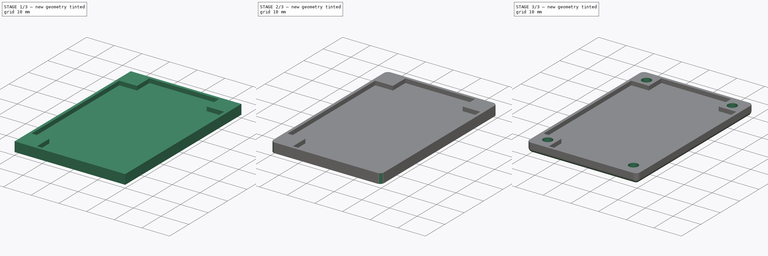
[diagram: build sequence overview — one tinted view per stage of 3, left to right]
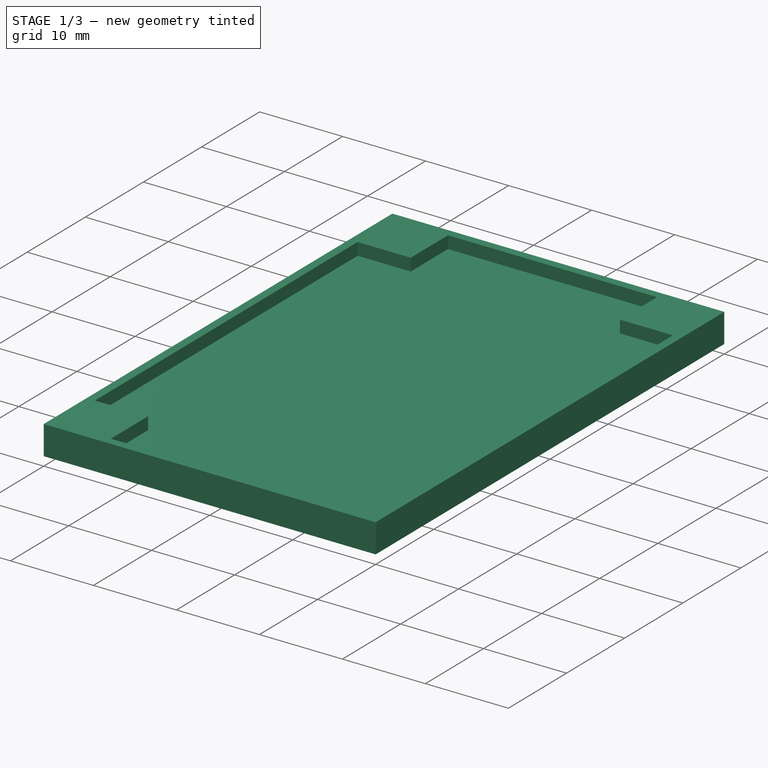
[diagram: stage 1 of 3 — iso view after this stage's code; geometry added in this stage tinted green]
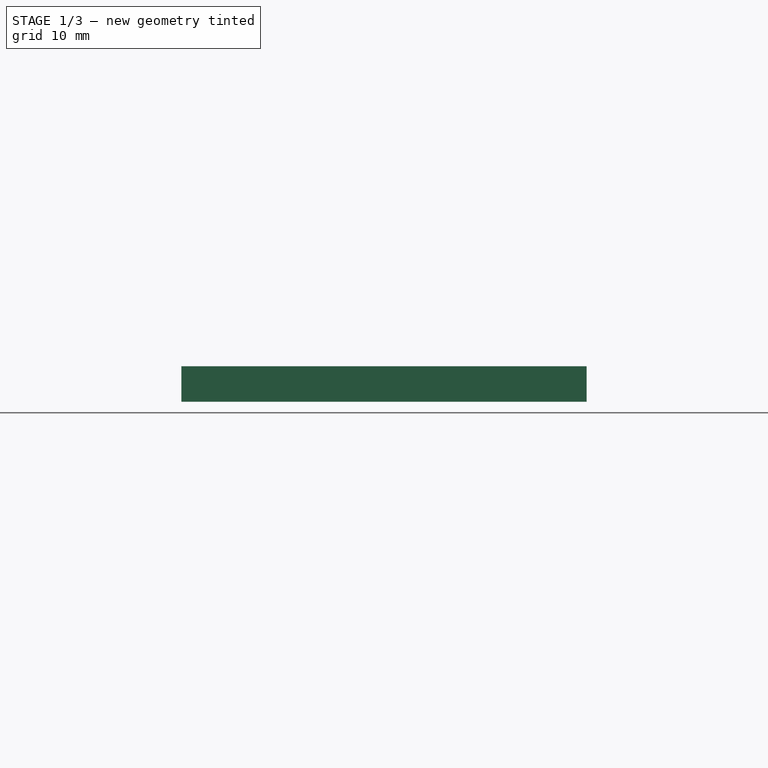
[diagram: stage 1 of 3 — front view after this stage's code; geometry added in this stage tinted green]
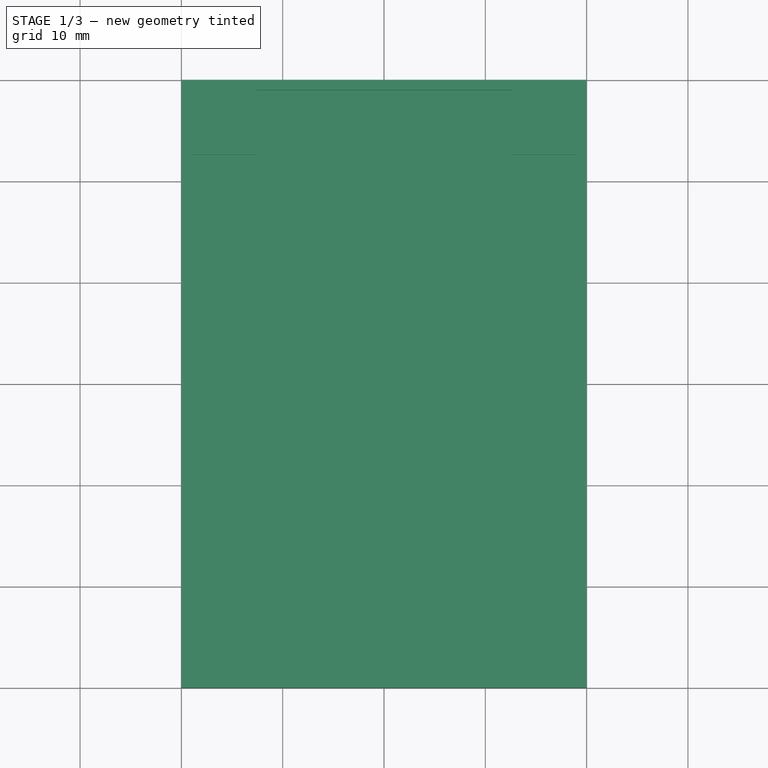
[diagram: stage 1 of 3 — top view after this stage's code; geometry added in this stage tinted green]
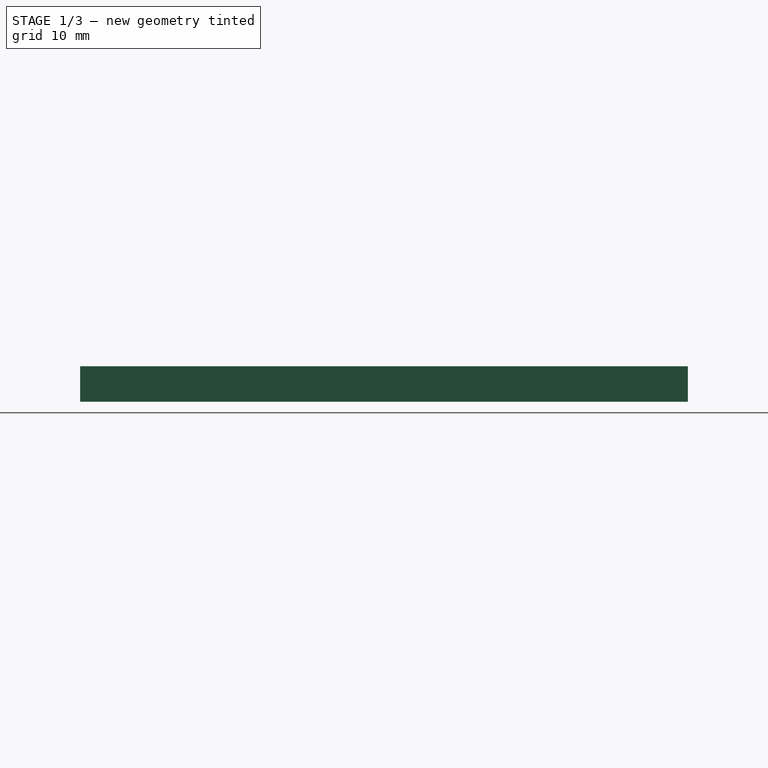
[diagram: stage 1 of 3 — right view after this stage's code; geometry added in this stage tinted green]
FCSTD DOCUMENT  (FreeCAD 0.18R16131 (Git))
Label: SmallVerticalAntennaCenterLid
License: All rights reserved
LicenseURL: http://en.wikipedia.org/wiki/All_rights_reserved
objects: Sketcher::SketchObject×5, PartDesign::Fillet×2, PartDesign::Pad×1, PartDesign::Pocket×1, PartDesign::Hole×1, PartDesign::Body×1
note: 14 computed .brp shape members not serialized (recipe doc carries the construction recipe); baked Part::Feature solids carry a one-line shape summary decoded from their .brp

FEATURE [Sketcher::SketchObject] Sketch003
  MapMode = 5
  Support = -> [XY_Plane]
  sketch-geometry (4):
    g0: LineSegment StartX=-20 StartY=30 StartZ=0 EndX=20 EndY=30 EndZ=0
    g1: LineSegment StartX=20 StartY=30 StartZ=0 EndX=20 EndY=-30 EndZ=0
    g2: LineSegment StartX=20 StartY=-30 StartZ=0 EndX=-20 EndY=-30 EndZ=0
    g3: LineSegment StartX=-20 StartY=-30 StartZ=0 EndX=-20 EndY=30 EndZ=0
  constraints (10):
    c: Coincident(g0,g1)
    c: Coincident(g1,g2)
    c: Coincident(g2,g3)
    c: Coincident(g3,g0)
    c: Horizontal(g2)
    c: Vertical(g1)
    c: Symmetric(g0,g0,g-2)
    c: Symmetric(g0,g2,g-1)
    c: DistanceX(g-2,g0) = -20
    c: DistanceY(g-1,g2) = -30
FEATURE [Sketcher::SketchObject] CopySketch003
  sketch-geometry (4):
    g0: LineSegment StartX=-20 StartY=30 StartZ=0 EndX=20 EndY=30 EndZ=0
    g1: LineSegment StartX=20 StartY=30 StartZ=0 EndX=20 EndY=-30 EndZ=0
    g2: LineSegment StartX=20 StartY=-30 StartZ=0 EndX=-20 EndY=-30 EndZ=0
    g3: LineSegment StartX=-20 StartY=-30 StartZ=0 EndX=-20 EndY=30 EndZ=0
  constraints (10):
    c: Coincident(g0,g1)
    c: Coincident(g1,g2)
    c: Coincident(g2,g3)
    c: Coincident(g3,g0)
    c: Horizontal(g2)
    c: Vertical(g1)
    c: Symmetric(g0,g0,g-2)
    c: Symmetric(g0,g2,g-1)
    c: DistanceX(g-2,g0) = -20
    c: DistanceY(g-1,g2) = -30
FEATURE [PartDesign::Pad] Pad
  Length = 3.5
  Length2 = 100
  Profile = -> CopySketch003
  Type = 0
FEATURE [Sketcher::SketchObject] Sketch002
  ExternalGeometry = -> [Pad]
  MapMode = 5
  Placement = pos=(0,0,3.5) rot=(0,0,1;0rad)
  Support = -> [Pad]
  sketch-geometry (13):
    g0: LineSegment StartX=-13.5 StartY=29 StartZ=0 EndX=13.5 EndY=29 EndZ=0
    g1: LineSegment StartX=19 StartY=23.5 StartZ=0 EndX=19 EndY=-23.5 EndZ=0
    g2: LineSegment StartX=13.5 StartY=-29 StartZ=0 EndX=-13.5 EndY=-29 EndZ=0
    g3: LineSegment StartX=-19 StartY=-23.5 StartZ=0 EndX=-19 EndY=23.5 EndZ=0
    g4: Circle [constr] CenterX=16.5 CenterY=26.5 CenterZ=0 NormalX=0 NormalY=0 NormalZ=1 AngleXU=0 Radius=1.8
    g5: LineSegment StartX=13.5 StartY=29 StartZ=0 EndX=13.5 EndY=23.5 EndZ=0
    g6: LineSegment StartX=13.5 StartY=23.5 StartZ=0 EndX=19 EndY=23.5 EndZ=0
    g7: LineSegment StartX=19 StartY=-23.5 StartZ=0 EndX=13.5 EndY=-23.5 EndZ=0
    g8: LineSegment StartX=13.5 StartY=-23.5 StartZ=0 EndX=13.5 EndY=-29 EndZ=0
    g9: LineSegment StartX=-13.5 StartY=-29 StartZ=0 EndX=-13.5 EndY=-23.5 EndZ=0
    g10: LineSegment StartX=-13.5 StartY=-23.5 StartZ=0 EndX=-19 EndY=-23.5 EndZ=0
    g11: LineSegment StartX=-19 StartY=23.5 StartZ=0 EndX=-13.5 EndY=23.5 EndZ=0
    g12: LineSegment StartX=-13.5 StartY=23.5 StartZ=0 EndX=-13.5 EndY=29 EndZ=0
  constraints (33):
    c: Diameter(g4) = 3.6
    c: Distance(g4,g-3) = 3.5
    c: Distance(g4,g-4) = 3.5
    c: Symmetric(g0,g2,g-1)
    c: Symmetric(g3,g1,g-2)
    c: Distance(g0,g-3) = 1
    c: Distance(g3,g-6) = 1
    c: Symmetric(g3,g1,g-2)
    c: Symmetric(g0,g2,g-1)
    c: Symmetric(g0,g0,g-2)
    c: Symmetric(g3,g3,g-1)
    c: Coincident(g0,g5)
    c: Coincident(g5,g6)
    c: Coincident(g6,g1)
    c: Coincident(g1,g7)
    c: Horizontal(g7)
    c: Coincident(g7,g8)
    c: Coincident(g8,g2)
    c: Coincident(g2,g9)
    c: Vertical(g9)
    c: Coincident(g9,g10)
    c: Coincident(g10,g3)
    c: Coincident(g3,g11)
    c: Coincident(g11,g12)
    c: Coincident(g12,g0)
    c: Horizontal(g10)
    c: Horizontal(g6)
    c: Vertical(g5)
    c: Vertical(g12)
    c: Horizontal(g11)
    c: Equal(g10,g9)
    c: Equal(g8,g7)
    c: Distance(g9,g-6) = 6.5
FEATURE [Sketcher::SketchObject] CopySketch002
  ExternalGeometry = -> [Sketch003]
  Placement = pos=(0,0,3.5) rot=(0,0,1;0rad)
  sketch-geometry (13):
    g0: LineSegment StartX=-12.6 StartY=29 StartZ=0 EndX=12.6 EndY=29 EndZ=0
    g1: LineSegment StartX=19 StartY=22.6 StartZ=0 EndX=19 EndY=-22.6 EndZ=0
    g2: LineSegment StartX=12.6 StartY=-29 StartZ=0 EndX=-12.6 EndY=-29 EndZ=0
    g3: LineSegment StartX=-19 StartY=-22.6 StartZ=0 EndX=-19 EndY=22.6 EndZ=0
    g4: Circle [constr] CenterX=15.5 CenterY=25.5 CenterZ=0 NormalX=0 NormalY=0 NormalZ=1 AngleXU=0 Radius=1.8
    g5: LineSegment StartX=12.6 StartY=29 StartZ=0 EndX=12.6 EndY=22.6 EndZ=0
    g6: LineSegment StartX=12.6 StartY=22.6 StartZ=0 EndX=19 EndY=22.6 EndZ=0
    g7: LineSegment StartX=19 StartY=-22.6 StartZ=0 EndX=12.6 EndY=-22.6 EndZ=0
    g8: LineSegment StartX=12.6 StartY=-22.6 StartZ=0 EndX=12.6 EndY=-29 EndZ=0
    g9: LineSegment StartX=-12.6 StartY=-29 StartZ=0 EndX=-12.6 EndY=-22.6 EndZ=0
    g10: LineSegment StartX=-12.6 StartY=-22.6 StartZ=0 EndX=-19 EndY=-22.6 EndZ=0
    g11: LineSegment StartX=-19 StartY=22.6 StartZ=0 EndX=-12.6 EndY=22.6 EndZ=0
    g12: LineSegment StartX=-12.6 StartY=22.6 StartZ=0 EndX=-12.6 EndY=29 EndZ=0
  constraints (33):
    c: Diameter(g4) = 3.6
    c: Symmetric(g0,g2,g-1)
    c: Symmetric(g3,g1,g-2)
    c: Symmetric(g3,g1,g-2)
    c: Symmetric(g0,g2,g-1)
    c: Symmetric(g0,g0,g-2)
    c: Symmetric(g3,g3,g-1)
    c: Coincident(g0,g5)
    c: Coincident(g5,g6)
    c: Coincident(g6,g1)
    c: Coincident(g1,g7)
    c: Horizontal(g7)
    c: Coincident(g7,g8)
    c: Coincident(g8,g2)
    c: Coincident(g2,g9)
    c: Vertical(g9)
    c: Coincident(g9,g10)
    c: Coincident(g10,g3)
    c: Coincident(g3,g11)
    c: Coincident(g11,g12)
    c: Coincident(g12,g0)
    c: Horizontal(g10)
    c: Horizontal(g6)
    c: Vertical(g5)
    c: Vertical(g12)
    c: Horizontal(g11)
    c: Equal(g10,g9)
    c: Equal(g8,g7)
    c: Distance(g3,g-4) = 1
    c: Distance(g2,g-6) = 1
    c: Distance(g4,g-3) = 4.5
    c: Distance(g4,g-5) = 4.5
    c: Distance(g9,g-4) = 7.4
FEATURE [PartDesign::Pocket] Pocket
  BaseFeature = -> Pad
  Length = 1.5
  Length2 = 100
  Profile = -> CopySketch002
  Type = 0
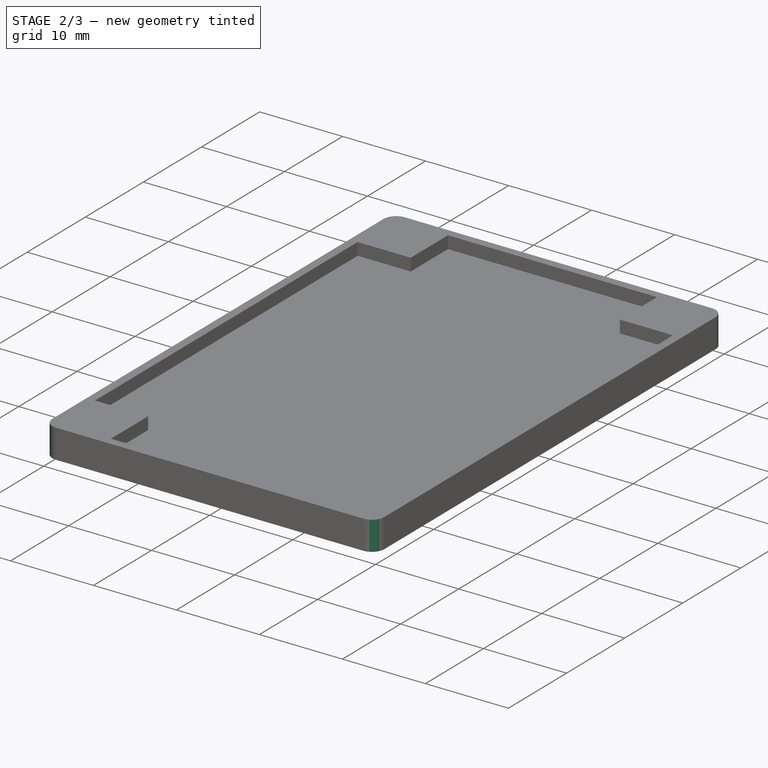
[diagram: stage 2 of 3 — iso view after this stage's code; geometry added in this stage tinted green]
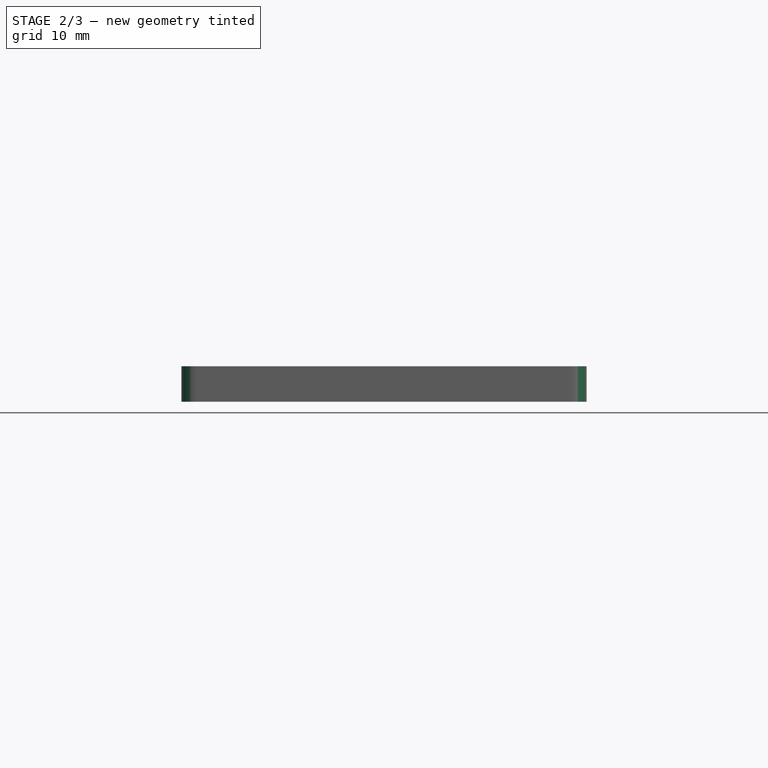
[diagram: stage 2 of 3 — front view after this stage's code; geometry added in this stage tinted green]
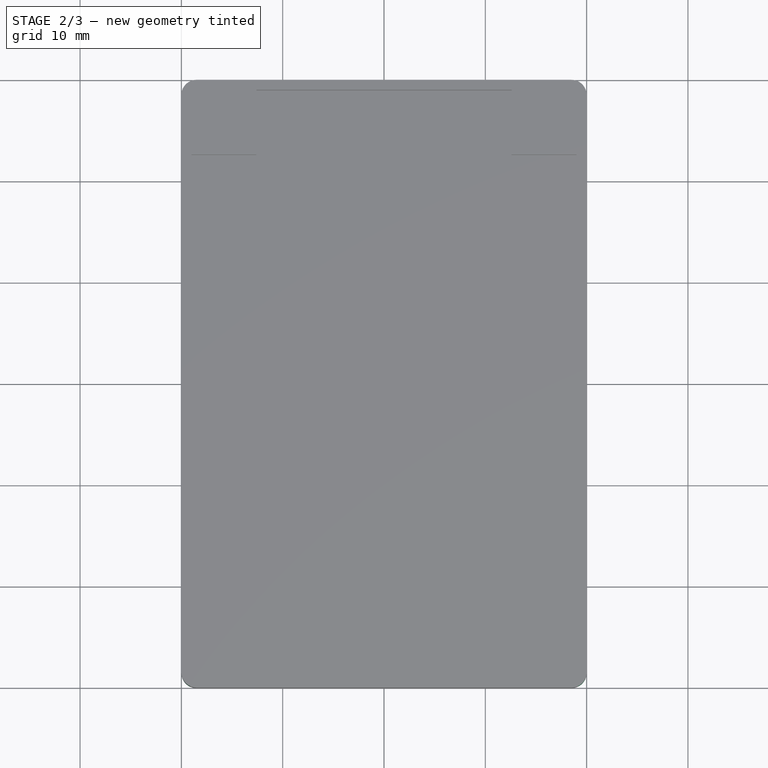
[diagram: stage 2 of 3 — top view after this stage's code; geometry added in this stage tinted green]
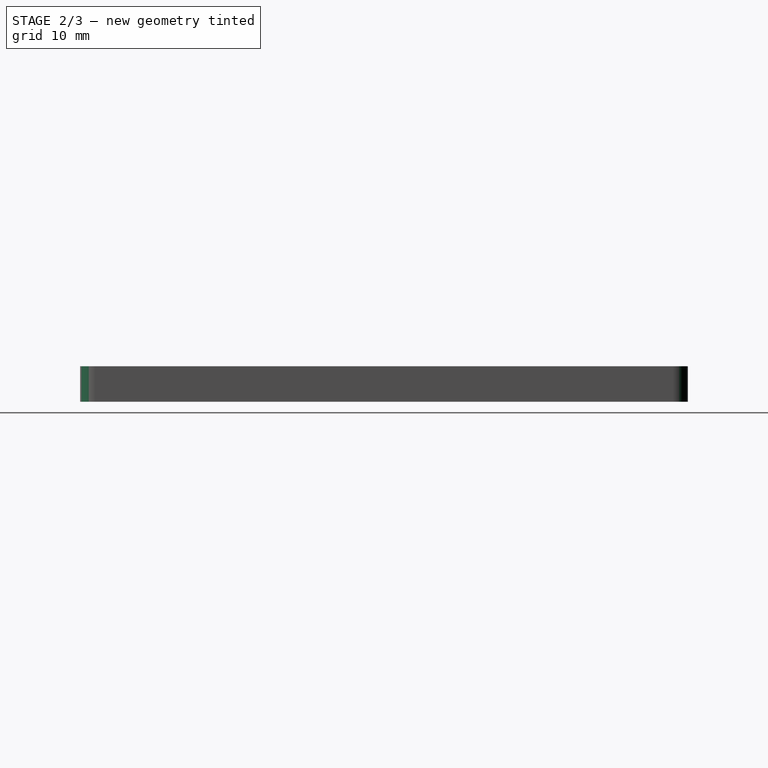
[diagram: stage 2 of 3 — right view after this stage's code; geometry added in this stage tinted green]
FEATURE [PartDesign::Fillet] Fillet
  Base = -> Pocket [Edge8,Edge5,Edge2,Edge1]
  BaseFeature = -> Pocket
  Radius = 1.5
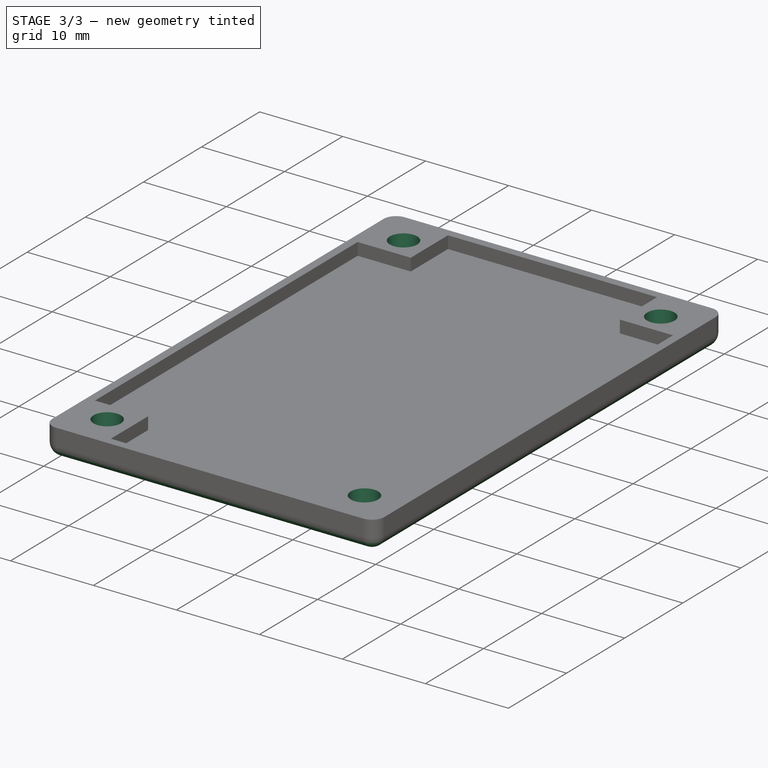
[diagram: stage 3 of 3 — iso view after this stage's code; geometry added in this stage tinted green]
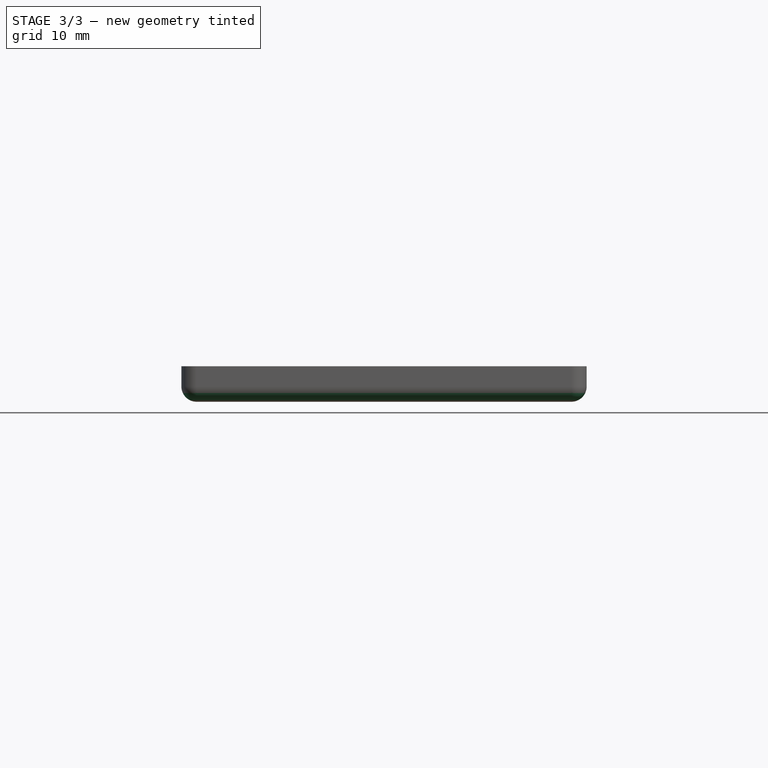
[diagram: stage 3 of 3 — front view after this stage's code; geometry added in this stage tinted green]
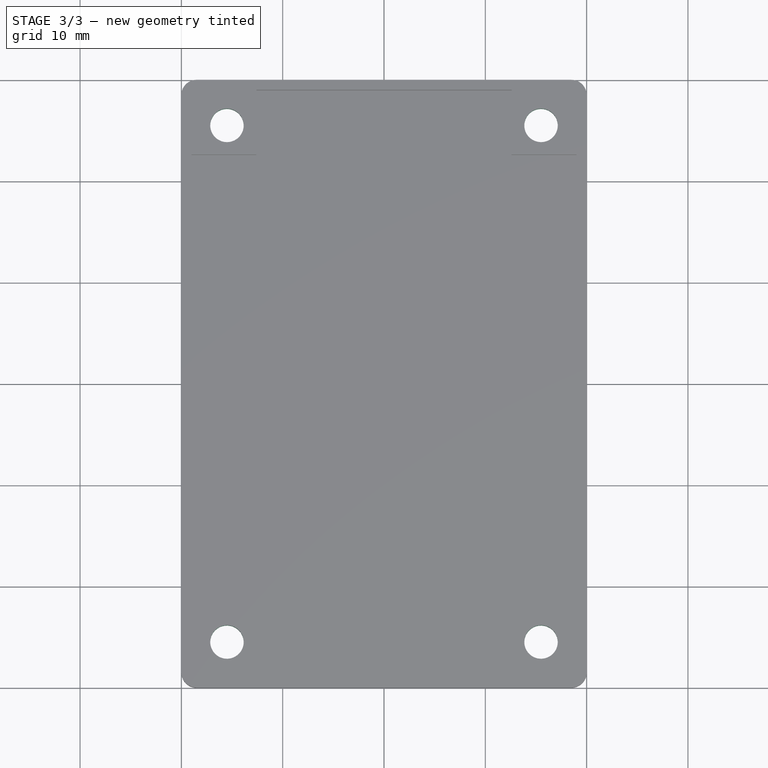
[diagram: stage 3 of 3 — top view after this stage's code; geometry added in this stage tinted green]
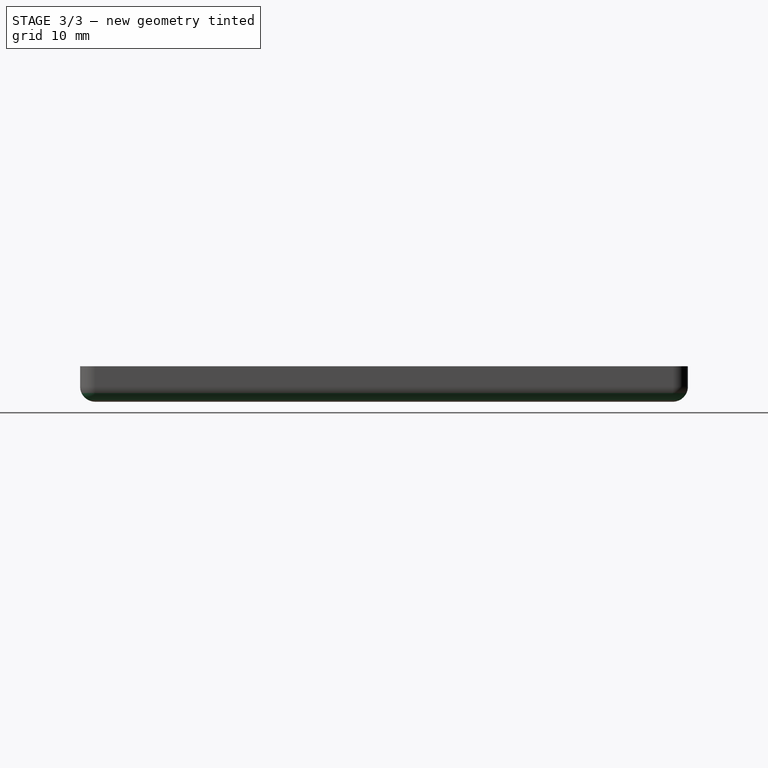
[diagram: stage 3 of 3 — right view after this stage's code; geometry added in this stage tinted green]
FEATURE [PartDesign::Fillet] Fillet001
  Base = -> Fillet [Face2]
  BaseFeature = -> Fillet
  Radius = 1.5
FEATURE [Sketcher::SketchObject] Sketch
  MapMode = 5
  Placement = pos=(0,0,0) rot=(1,0,0;3.14159rad)
  Support = -> [Fillet001]
  sketch-geometry (4):
    g0: Circle CenterX=15.5 CenterY=25.5 CenterZ=0 NormalX=0 NormalY=0 NormalZ=1 AngleXU=0 Radius=1.6
    g1: Circle CenterX=15.5 CenterY=-25.5 CenterZ=0 NormalX=0 NormalY=0 NormalZ=1 AngleXU=0 Radius=1.6
    g2: Circle CenterX=-15.5 CenterY=-25.5 CenterZ=0 NormalX=0 NormalY=0 NormalZ=1 AngleXU=0 Radius=1.6
    g3: Circle CenterX=-15.5 CenterY=25.5 CenterZ=0 NormalX=0 NormalY=0 NormalZ=1 AngleXU=0 Radius=1.6
  constraints (9):
    c: Symmetric(g0,g3,g-2)
    c: Symmetric(g3,g2,g-1)
    c: Symmetric(g2,g1,g-2)
    c: DistanceX(g-2,g0) = 15.5
    c: DistanceY(g-1,g0) = 25.5
    c: Radius(g0) = 1.6
    c: Equal(g0,g1)
    c: Equal(g1,g2)
    c: Equal(g2,g3)
FEATURE [PartDesign::Hole] Hole
  BaseFeature = -> Fillet001
  Depth = 25
  DepthType = 0
  Diameter = 3.3
  DrillPoint = 1
  DrillPointAngle = 118
  HoleCutCountersinkAngle = 90
  HoleCutDepth = 0
  HoleCutDiameter = 6
  HoleCutType = 2
  ModelActualThread = false
  Profile = -> Sketch
  Tapered = false
  TaperedAngle = 90
  ThreadAngle = 0
  ThreadClass = 0
  ThreadCutOffInner = 0
  ThreadCutOffOuter = 0
  ThreadDirection = 0
  ThreadFit = 0
  ThreadPitch = 0
  ThreadSize = 3
  ThreadType = 1
  Threaded = false
FEATURE [PartDesign::Body] Body
  Group = -> [Pad,Pocket,Fillet,Fillet001,Sketch,Hole]
  Origin = -> Origin
  Tip = -> Hole
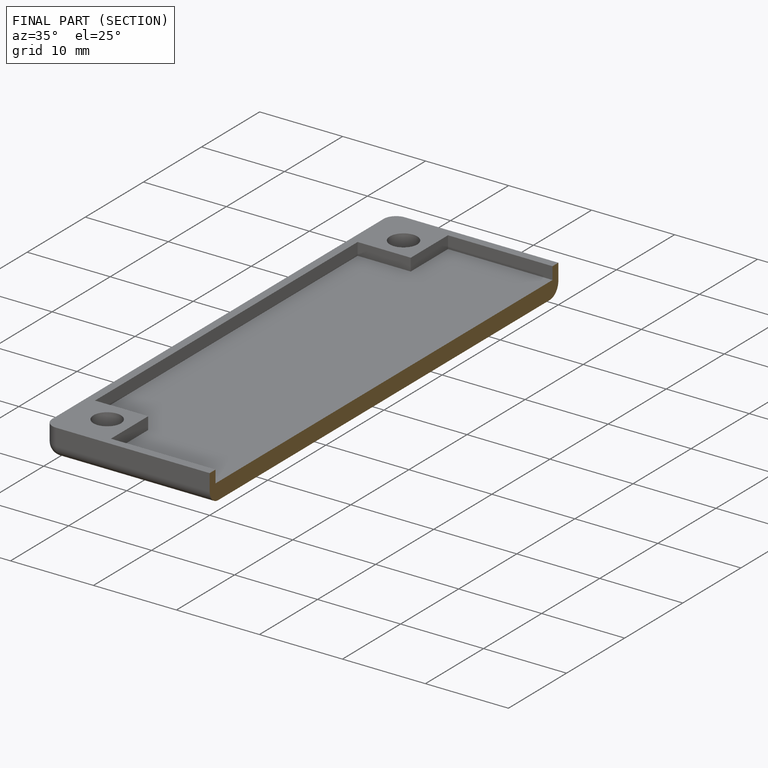
[diagram: finished part — half-section view (interior)]
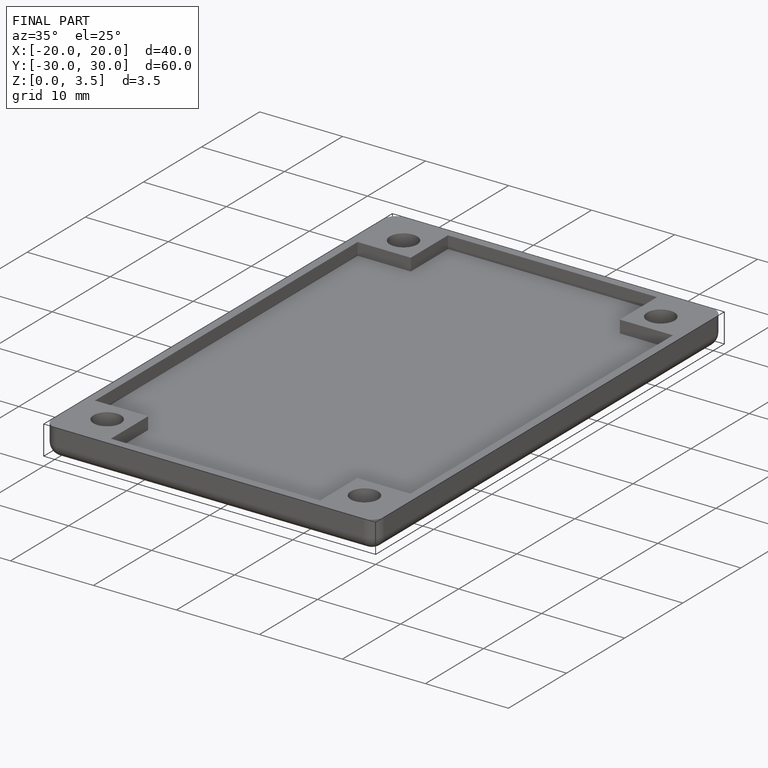
[diagram: finished part — iso view with bounding-box wireframe]
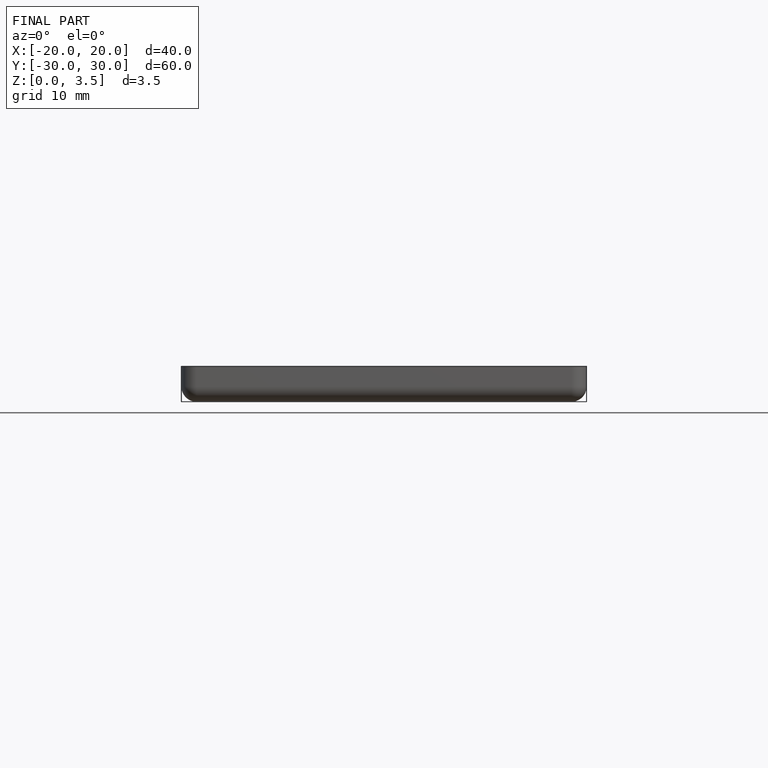
[diagram: finished part — front view with bounding-box wireframe]
